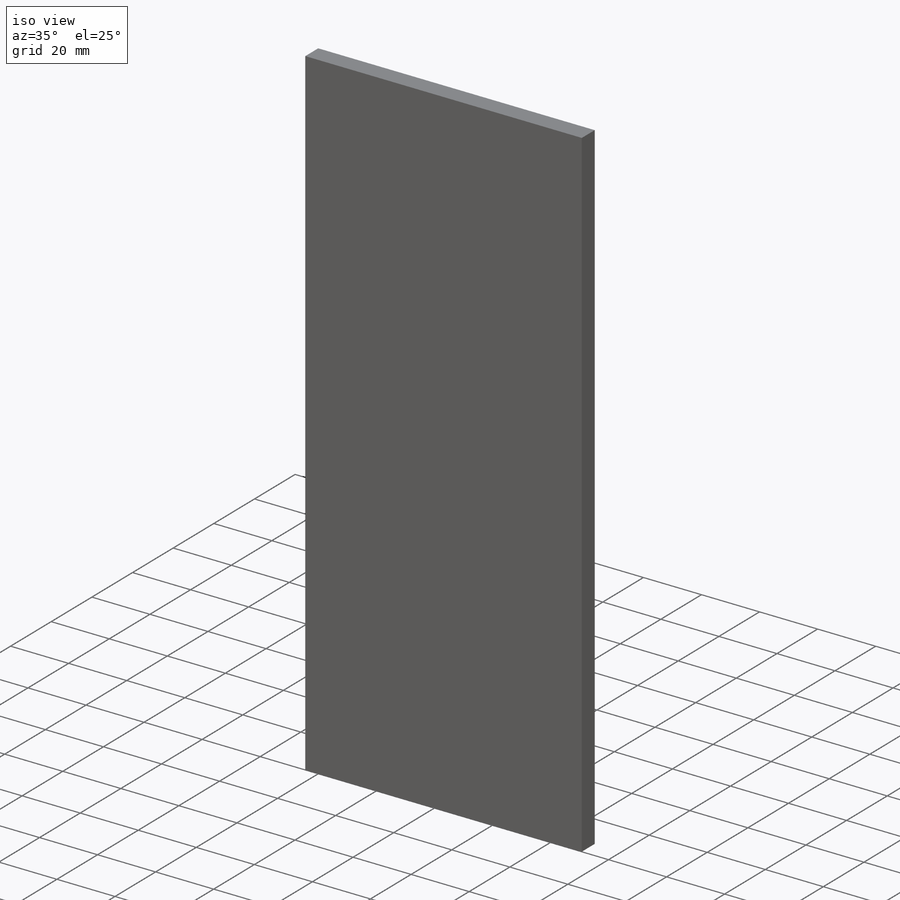
[diagram: iso view]
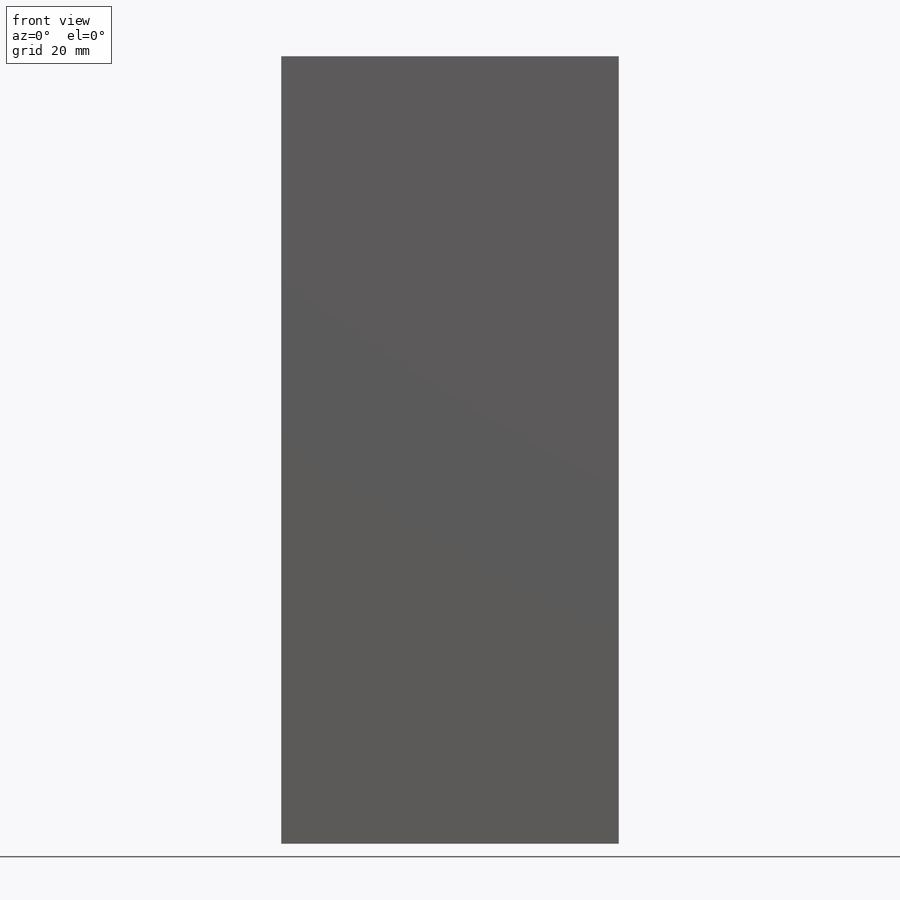
[diagram: front view]
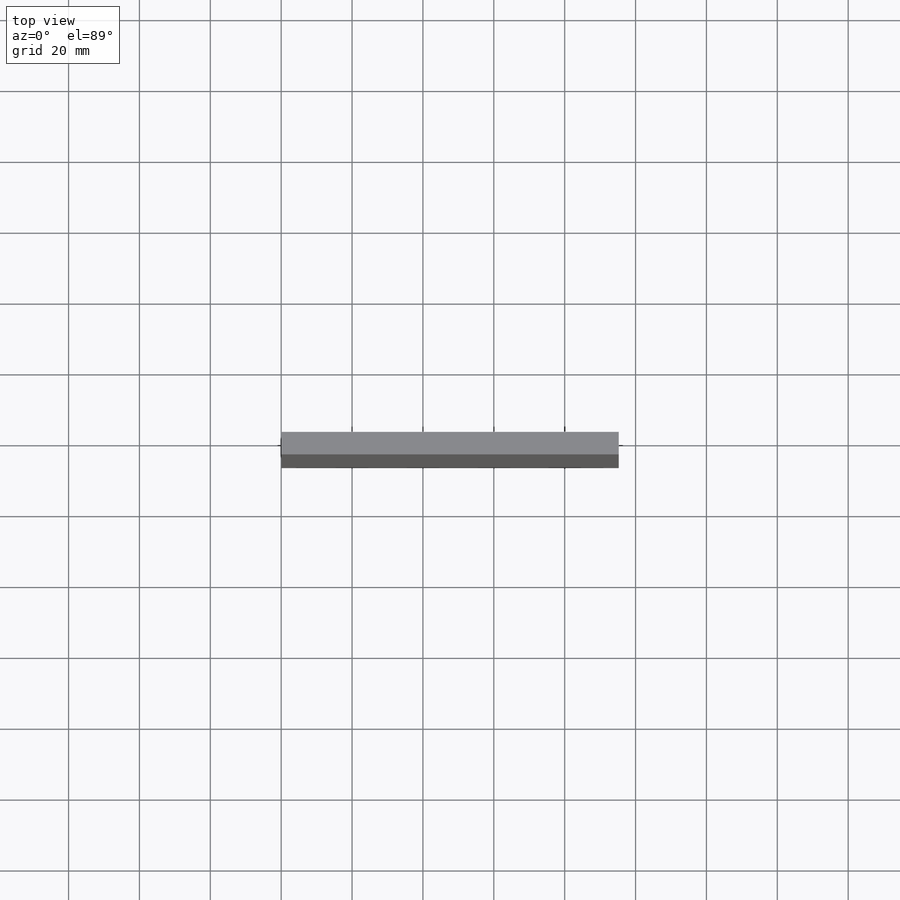
[diagram: top view]
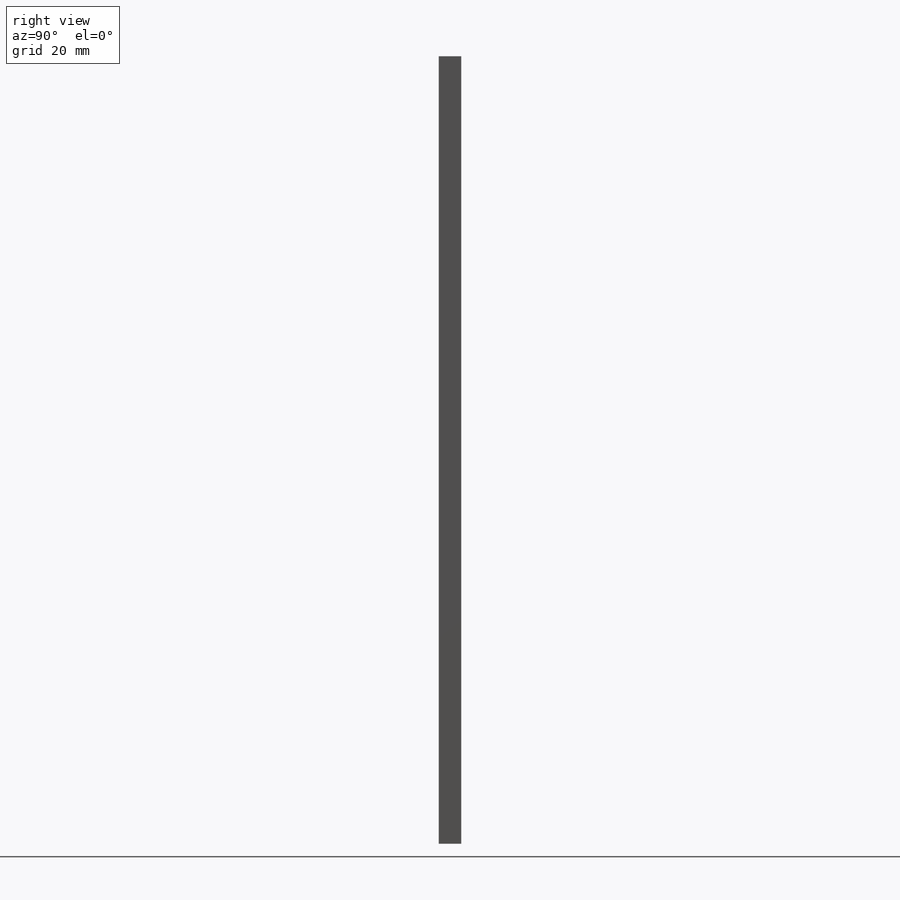
[diagram: right view]
SOLIDWORKS PART (.sldprt)
format: sldprt  version: not decoded by parser v0  size: 200,704 bytes
history: native  units: mm
features: sketch x5, cut_extrude x4, material x1, extrude x1 (+13 scaffold rows collapsed)
feature tree (24):
  scaffold x13  (default folders/planes/origin — collapsed)
  material  "Material <not specified>"
  sketch  "Sketch1"  dims[D1=222.25mm D2=95.25mm]
  extrude  "Boss-Extrude1"  Depth=6.35mm
  sketch  "Sketch2"  dims[D1=9.525mm D2=38.1mm]
  cut_extrude  "Cut-Extrude1"  Depth=15.875mm
  sketch  "Sketch3"  dims[D5=6.35mm D1=63.5mm D2=0.0mm D3=19.05mm D4=6.35mm]
  cut_extrude  "Cut-Extrude2"  Depth=6.35mm
  sketch  "Sketch4"  dims[D5=6.35mm D1=63.5mm D2=38.1mm D3=15.875mm D4=~61.000693mm]
  cut_extrude  "Cut-Extrude3"  Depth=6.35mm
  sketch  "Sketch5"  dims[D5=3.175mm D1=69.85mm D2=19.05mm D3=38.1mm D4=15.748mm]
  cut_extrude  "Cut-Extrude4"  Depth=6.35mm
decode coverage: 10 of 10 modeling features carry decoded parameters
note: ~ marks probable driven/reference dimensions
note: suppression state not decoded; provenance and decode notes live in map.json
